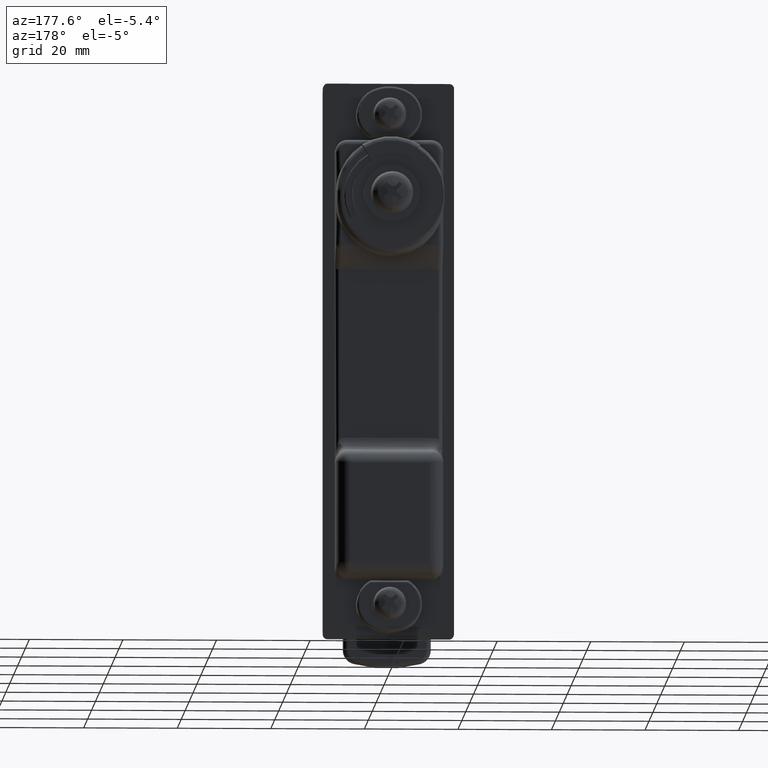
[diagram: clean part render]
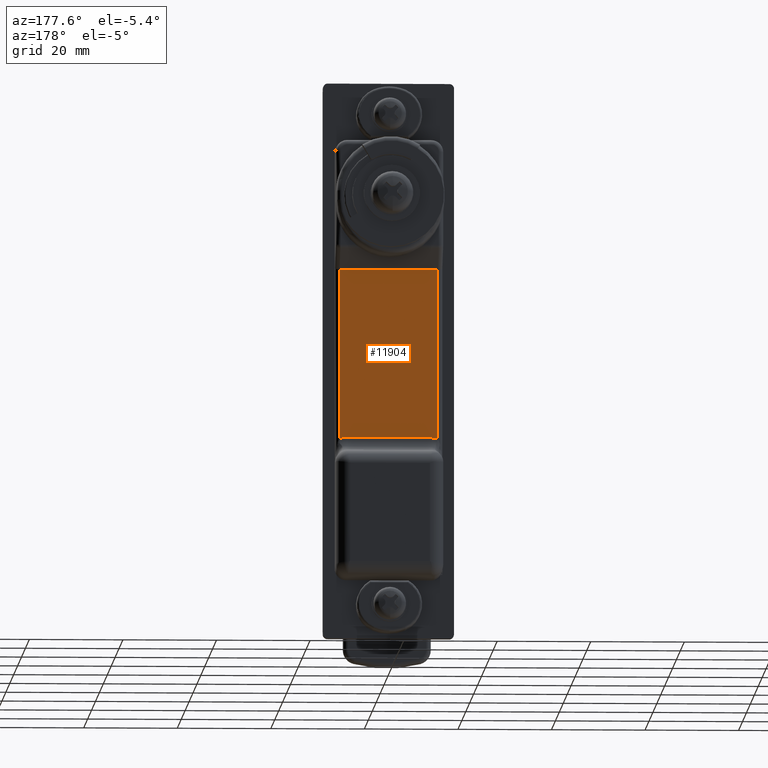
[diagram: same view with one face highlighted and labeled with its STEP entity id]
A machine part, auxiliary view. The second image highlights one B-rep face of the part: STEP entity #11904.
In plain terms, the highlighted planar face has unit normal (0, 1, 0).
Its self-contained STEP definition (entity closure, byte-faithful):
#11904 = ADVANCED_FACE ( 'NONE', ( #17171 ), #17258, .T. ) ;
#11905 = EDGE_LOOP ( 'NONE', ( #11906, #11910, #11913, #11962, #11965, #11968 ) ) ;
#11906 = ORIENTED_EDGE ( 'NONE', *, *, #11907, .T. ) ;
#11907 = EDGE_CURVE ( 'NONE', #11908, #11909, #17252, .T. ) ;
#11908 = VERTEX_POINT ( 'NONE', #17248 ) ;
#11909 = VERTEX_POINT ( 'NONE', #17247 ) ;
#11910 = ORIENTED_EDGE ( 'NONE', *, *, #11911, .T. ) ;
#11911 = EDGE_CURVE ( 'NONE', #11909, #11912, #17245, .T. ) ;
#11912 = VERTEX_POINT ( 'NONE', #17166 ) ;
#11913 = ORIENTED_EDGE ( 'NONE', *, *, #11961, .T. ) ;
#11925 = VERTEX_POINT ( 'NONE', #17135 ) ;
#11961 = EDGE_CURVE ( 'NONE', #11912, #11925, #17323, .T. ) ;
#11962 = ORIENTED_EDGE ( 'NONE', *, *, #11963, .T. ) ;
#11963 = EDGE_CURVE ( 'NONE', #11925, #11964, #17316, .T. ) ;
#11964 = VERTEX_POINT ( 'NONE', #17310 ) ;
#11965 = ORIENTED_EDGE ( 'NONE', *, *, #11966, .T. ) ;
#11966 = EDGE_CURVE ( 'NONE', #11964, #11967, #17305, .T. ) ;
#11967 = VERTEX_POINT ( 'NONE', #17297 ) ;
#11968 = ORIENTED_EDGE ( 'NONE', *, *, #11969, .T. ) ;
#11969 = EDGE_CURVE ( 'NONE', #11967, #11908, #17291, .T. ) ;
#17135 = CARTESIAN_POINT ( 'NONE',  ( -15.49999999999920100, 9.000000000000000000, -50.99999999998870200 ) ) ;
#17166 = CARTESIAN_POINT ( 'NONE',  ( -15.49999999999920100, -9.000000000000000000, -50.99999999998870200 ) ) ;
#17168 = DIRECTION ( 'NONE',  ( 0.0000000000000000000, 5.361872562110132700E-015, -1.000000000000000000 ) ) ;
#17171 = FACE_OUTER_BOUND ( 'NONE', #11905, .T. ) ;
#17242 = DIRECTION ( 'NONE',  ( -1.000000000000000000, 0.0000000000000000000, 0.0000000000000000000 ) ) ;
#17243 = CARTESIAN_POINT ( 'NONE',  ( -15.49999999999920100, -9.000000000000000000, -56.49999999998869500 ) ) ;
#17244 = AXIS2_PLACEMENT_3D ( 'NONE', #17243, #17242, #17168 ) ;
#17245 = CIRCLE ( 'NONE', #17244, 5.499999999999998200 ) ;
#17247 = CARTESIAN_POINT ( 'NONE',  ( -15.49999999999920100, -10.50000000000000000, -51.20849737785950100 ) ) ;
#17248 = CARTESIAN_POINT ( 'NONE',  ( -15.49999999999920100, -10.50000000000000000, -14.95248169645680000 ) ) ;
#17249 = DIRECTION ( 'NONE',  ( 0.0000000000000000000, 0.0000000000000000000, -1.000000000000000000 ) ) ;
#17250 = VECTOR ( 'NONE', #17249, 1000.000000000000000 ) ;
#17251 = CARTESIAN_POINT ( 'NONE',  ( -15.49999999999920100, -10.50000000000000000, -53.99999999998869500 ) ) ;
#17252 = LINE ( 'NONE', #17251, #17250 ) ;
#17253 = DIRECTION ( 'NONE',  ( 0.0000000000000000000, 0.0000000000000000000, -1.000000000000000000 ) ) ;
#17254 = DIRECTION ( 'NONE',  ( 1.000000000000000000, 0.0000000000000000000, 0.0000000000000000000 ) ) ;
#17255 = CARTESIAN_POINT ( 'NONE',  ( -15.49999999999920100, 988.5000000000000000, -53.99999999998869500 ) ) ;
#17256 = AXIS2_PLACEMENT_3D ( 'NONE', #17255, #17254, #17253 ) ;
#17258 = PLANE ( 'NONE',  #17256 ) ;
#17287 = DIRECTION ( 'NONE',  ( 0.0000000000000000000, -1.000000000000000000, 0.0000000000000000000 ) ) ;
#17289 = VECTOR ( 'NONE', #17287, 1000.000000000000000 ) ;
#17290 = CARTESIAN_POINT ( 'NONE',  ( -15.49999999999920100, 988.5000000000000000, -14.95248169645680000 ) ) ;
#17291 = LINE ( 'NONE', #17290, #17289 ) ;
#17297 = CARTESIAN_POINT ( 'NONE',  ( -15.49999999999920100, 10.50000000000000000, -14.95248169645680000 ) ) ;
#17299 = DIRECTION ( 'NONE',  ( 0.0000000000000000000, 0.0000000000000000000, 1.000000000000000000 ) ) ;
#17301 = VECTOR ( 'NONE', #17299, 1000.000000000000000 ) ;
#17303 = CARTESIAN_POINT ( 'NONE',  ( -15.49999999999920100, 10.50000000000000000, -14.95248169645680000 ) ) ;
#17305 = LINE ( 'NONE', #17303, #17301 ) ;
#17310 = CARTESIAN_POINT ( 'NONE',  ( -15.49999999999920100, 10.50000000000000000, -51.20849737785950100 ) ) ;
#17311 = DIRECTION ( 'NONE',  ( 0.0000000000000000000, 5.361872562110132700E-015, -1.000000000000000000 ) ) ;
#17313 = DIRECTION ( 'NONE',  ( -1.000000000000000000, 0.0000000000000000000, 0.0000000000000000000 ) ) ;
#17314 = CARTESIAN_POINT ( 'NONE',  ( -15.49999999999920100, 9.000000000000000000, -56.49999999998869500 ) ) ;
#17315 = AXIS2_PLACEMENT_3D ( 'NONE', #17314, #17313, #17311 ) ;
#17316 = CIRCLE ( 'NONE', #17315, 5.499999999999998200 ) ;
#17320 = DIRECTION ( 'NONE',  ( 0.0000000000000000000, 1.000000000000000000, 0.0000000000000000000 ) ) ;
#17321 = VECTOR ( 'NONE', #17320, 1000.000000000000000 ) ;
#17322 = CARTESIAN_POINT ( 'NONE',  ( -15.49999999999920100, 9.000000000000000000, -50.99999999998870200 ) ) ;
#17323 = LINE ( 'NONE', #17322, #17321 ) ;